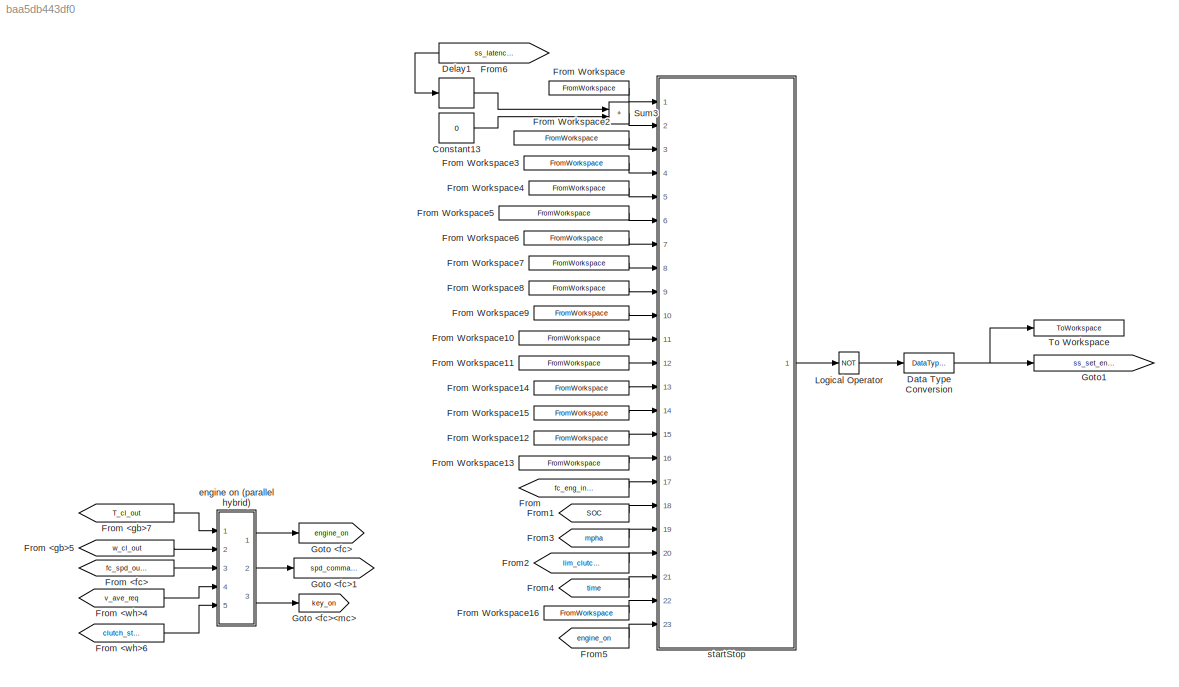
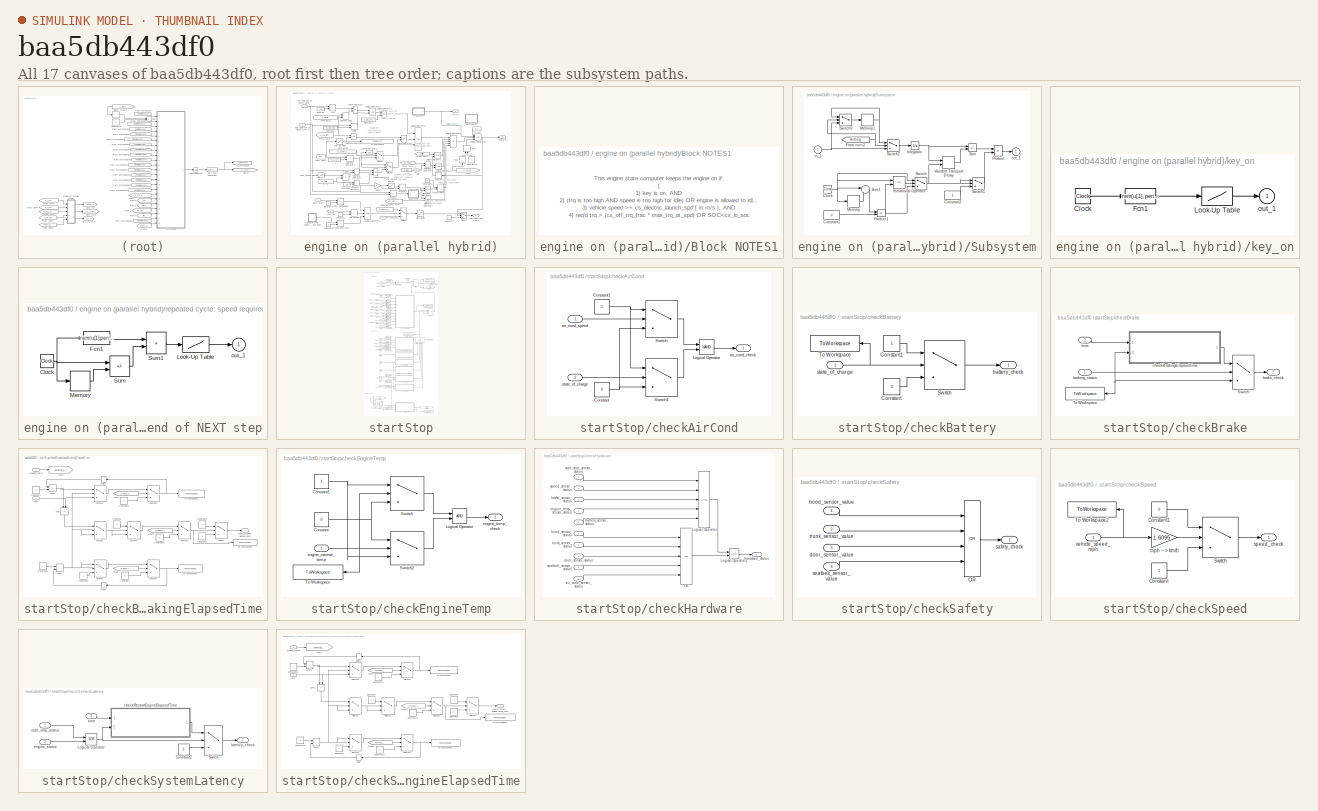
[diagram: thumbnail index - all 17 canvases of the model, root first then tree order]
MODEL slx_baa5db443df0
KIND model
CONFIG AbsTol = auto
CONFIG EnableMultiTasking = off
CONFIG FixedStep = auto
CONFIG MaxStep = auto
CONFIG MinStep = auto
CONFIG RelTol = 1e-3
CONFIG SampleTimeConstraint = Unconstrained
CONFIG SolverName = VariableStepAuto
CONFIG StartTime = 0.0
CONFIG StopTime = 10.0
BLOCK [Constant] Constant13
  OutDataTypeStr = fixdt(0,1,1,0)
  Value = 0
BLOCK [DataTypeConversion] Data Type Conversion
  OutDataTypeStr = double
  RndMeth = Floor
  SaturateOnIntegerOverflow = off
BLOCK [Delay] Delay1
  DelayLength = 1
  InitialCondition = 0
  InputPortMap = u0
  Ports = [1, 1]
BLOCK [From] From
  GotoTag = fc_eng_int_temp
  TagVisibility = global
BLOCK [From] From <fc>
  CloseFcn = tagdialog Close
  GotoTag = fc_spd_out_r
  TagVisibility = global
BLOCK [From] From <gb>5
  CloseFcn = tagdialog Close
  GotoTag = w_cl_out
  NameLocation = top
  TagVisibility = global
BLOCK [From] From <gb>7
  CloseFcn = tagdialog Close
  GotoTag = T_cl_out
  NameLocation = top
  TagVisibility = global
BLOCK [From] From <wh>4
  CloseFcn = tagdialog Close
  GotoTag = v_ave_req
  TagVisibility = global
BLOCK [From] From <wh>6
  CloseFcn = tagdialog Close
  GotoTag = clutch_state
  TagVisibility = global
BLOCK [FromWorkspace] From Workspace
  VariableName = ss_button_pressed
BLOCK [FromWorkspace] From Workspace10
  VariableName = ss_seatbelt_sensor_status
BLOCK [FromWorkspace] From Workspace11
  VariableName = ss_air_cond_sensor_status
BLOCK [FromWorkspace] From Workspace12
  VariableName = ss_door_sensor_value
BLOCK [FromWorkspace] From Workspace13
  VariableName = ss_seatbelt_sensor_value
BLOCK [FromWorkspace] From Workspace14
  VariableName = ss_hood_sensor_value
BLOCK [FromWorkspace] From Workspace15
  VariableName = ss_trunk_sensor_value
BLOCK [FromWorkspace] From Workspace16
  VariableName = ss_air_cond_speed
BLOCK [FromWorkspace] From Workspace2
  VariableName = ss_start_stop_sensor_status
BLOCK [FromWorkspace] From Workspace3
  VariableName = ss_speed_sensor_status
BLOCK [FromWorkspace] From Workspace4
  VariableName = ss_brake_sensor_status
BLOCK [FromWorkspace] From Workspace5
  VariableName = ss_engine_temp_sensor_status
BLOCK [FromWorkspace] From Workspace6
  VariableName = ss_battery_sensor_status
BLOCK [FromWorkspace] From Workspace7
  VariableName = ss_hood_sensor_status
BLOCK [FromWorkspace] From Workspace8
  VariableName = ss_trunk_sensor_status
BLOCK [FromWorkspace] From Workspace9
  VariableName = ss_door_sensor_status
BLOCK [From] From1
  GotoTag = SOC
  TagVisibility = global
BLOCK [From] From2
  GotoTag = lim_clutch_dis
  TagVisibility = global
BLOCK [From] From3
  GotoTag = mpha
  TagVisibility = global
BLOCK [From] From4
  GotoTag = time
  TagVisibility = global
BLOCK [From] From5
  GotoTag = engine_on
  TagVisibility = global
BLOCK [From] From6
  GotoTag = ss_latency_status
  TagVisibility = global
BLOCK [Goto] Goto <fc>
  GotoTag = engine_on
  NameLocation = top
  TagVisibility = global
BLOCK [Goto] Goto <fc>1
  GotoTag = spd_command
  TagVisibility = global
BLOCK [Goto] Goto <fc><mc>
  GotoTag = key_on
  TagVisibility = global
BLOCK [Goto] Goto1
  GotoTag = ss_set_engine_status
  TagVisibility = global
BLOCK [Logic] Logical Operator
  AllPortsSameDT = off
  Operator = NOT
  OutDataTypeStr = fixdt(0,1,1,0)
  Ports = [1, 1]
BLOCK [Sum] Sum3
  IconShape = rectangular
  OutDataTypeStr = fixdt(0,1,1,0)
  Ports = [2, 1]
BLOCK [ToWorkspace] To Workspace
  MaxDataPoints = inf
  Ports = [1]
  SampleTime = 1
  VariableName = ss_set_engine_status
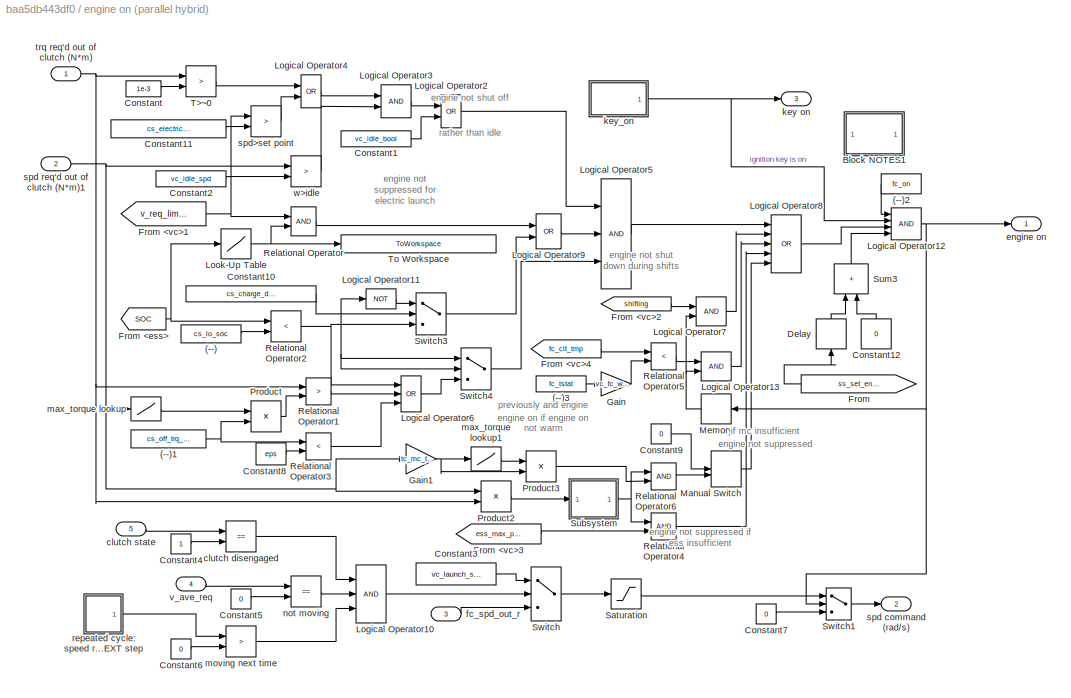
BLOCK [SubSystem] engine on (parallel hybrid)
  Ports = [5, 3]
  RequestExecContextInheritance = off
  ShowPortLabels = none
BLOCK [Constant] engine on (parallel hybrid)/(--)
  Value = cs_lo_soc
BLOCK [Constant] engine on (parallel hybrid)/(--)1
  Value = cs_off_trq_frac
BLOCK [Constant] engine on (parallel hybrid)/(--)2
  Value = fc_on
BLOCK [Constant] engine on (parallel hybrid)/(--)3
  Value = fc_tstat
BLOCK [SubSystem] engine on (parallel hybrid)/Block NOTES1
  Ports = []
  RequestExecContextInheritance = off
BLOCK [Constant] engine on (parallel hybrid)/Constant
  Value = 1e-3
BLOCK [Constant] engine on (parallel hybrid)/Constant1
  Value = vc_idle_bool
BLOCK [Constant] engine on (parallel hybrid)/Constant10
  Value = cs_charge_deplete_bool
BLOCK [Constant] engine on (parallel hybrid)/Constant11
  Value = cs_electric_decel_spd
BLOCK [Constant] engine on (parallel hybrid)/Constant12
  NameLocation = left
  Value = 0
BLOCK [Constant] engine on (parallel hybrid)/Constant2
  Value = vc_idle_spd
BLOCK [Constant] engine on (parallel hybrid)/Constant3
  Value = vc_launch_spd
BLOCK [Constant] engine on (parallel hybrid)/Constant4
BLOCK [Constant] engine on (parallel hybrid)/Constant5
  Value = 0
BLOCK [Constant] engine on (parallel hybrid)/Constant6
  Value = 0
BLOCK [Constant] engine on (parallel hybrid)/Constant7
  Value = 0
BLOCK [Constant] engine on (parallel hybrid)/Constant8
  Value = eps
BLOCK [Constant] engine on (parallel hybrid)/Constant9
  Value = 0
BLOCK [Delay] engine on (parallel hybrid)/Delay
  DelayLength = 1
  InitialCondition = 1
  InputPortMap = u0
  NameLocation = left
  Ports = [1, 1]
BLOCK [From] engine on (parallel hybrid)/From
  GotoTag = ss_set_engine_status
  TagVisibility = global
BLOCK [From] engine on (parallel hybrid)/From <ess>
  CloseFcn = tagdialog Close
  GotoTag = SOC
  NameLocation = top
  TagVisibility = global
BLOCK [From] engine on (parallel hybrid)/From <vc>1
  CloseFcn = tagdialog Close
  GotoTag = v_req_limited
  TagVisibility = global
BLOCK [From] engine on (parallel hybrid)/From <vc>2
  CloseFcn = tagdialog Close
  GotoTag = shifting
  TagVisibility = global
BLOCK [From] engine on (parallel hybrid)/From <vc>3
  CloseFcn = tagdialog Close
  GotoTag = ess_max_pwr
  TagVisibility = global
BLOCK [From] engine on (parallel hybrid)/From <vc>4
  CloseFcn = tagdialog Close
  GotoTag = fc_clt_tmp
  TagVisibility = global
BLOCK [Gain] engine on (parallel hybrid)/Gain
  Gain = vc_fc_warm_tmp_frac
  OutDataTypeStr = Inherit: Same as input
  ParamDataTypeStr = Inherit: Same as input
  SaturateOnIntegerOverflow = on
BLOCK [Gain] engine on (parallel hybrid)/Gain1
  Gain = tc_mc_to_fc_ratio
  OutDataTypeStr = Inherit: Same as input
  ParamDataTypeStr = Inherit: Same as input
  SaturateOnIntegerOverflow = on
BLOCK [Logic] engine on (parallel hybrid)/Logical Operator10
  Inputs = 3
  Ports = [3, 1]
BLOCK [Logic] engine on (parallel hybrid)/Logical Operator11
  Inputs = 1
  Operator = NOT
  Ports = [1, 1]
BLOCK [Logic] engine on (parallel hybrid)/Logical Operator12
  Inputs = 4
  Ports = [4, 1]
BLOCK [Logic] engine on (parallel hybrid)/Logical Operator13
  Ports = [2, 1]
BLOCK [Logic] engine on (parallel hybrid)/Logical Operator2
  Operator = OR
  Ports = [2, 1]
BLOCK [Logic] engine on (parallel hybrid)/Logical Operator3
  Ports = [2, 1]
BLOCK [Logic] engine on (parallel hybrid)/Logical Operator4
  Operator = OR
  Ports = [2, 1]
BLOCK [Logic] engine on (parallel hybrid)/Logical Operator5
  Inputs = 3
  Ports = [3, 1]
BLOCK [Logic] engine on (parallel hybrid)/Logical Operator6
  Inputs = 3
  Operator = OR
  Ports = [3, 1]
BLOCK [Logic] engine on (parallel hybrid)/Logical Operator7
  Ports = [2, 1]
BLOCK [Logic] engine on (parallel hybrid)/Logical Operator8
  Inputs = 5
  Operator = OR
  Ports = [5, 1]
BLOCK [Logic] engine on (parallel hybrid)/Logical Operator9
  Operator = OR
  Ports = [2, 1]
BLOCK [Lookup] engine on (parallel hybrid)/Look-Up Table
  InputValues = [cs_lo_soc cs_hi_soc cs_hi_soc+eps]
  Table = [cs_electric_launch_spd_lo cs_electric_launch_spd_hi cs_electric_launch_spd_hi]
BLOCK [ManualSwitch] engine on (parallel hybrid)/Manual Switch
BLOCK [Memory] engine on (parallel hybrid)/Memory
  InitialCondition = cyc_mph(1,2)>0
BLOCK [Product] engine on (parallel hybrid)/Product
  InputSameDT = on
  OutDataTypeStr = Inherit: Same as first input
  Ports = [2, 1]
  RndMeth = Zero
  SaturateOnIntegerOverflow = on
BLOCK [Product] engine on (parallel hybrid)/Product2
  InputSameDT = on
  OutDataTypeStr = Inherit: Same as first input
  Ports = [2, 1]
  RndMeth = Zero
  SaturateOnIntegerOverflow = on
BLOCK [Product] engine on (parallel hybrid)/Product3
  InputSameDT = on
  OutDataTypeStr = Inherit: Same as first input
  Ports = [2, 1]
  RndMeth = Zero
  SaturateOnIntegerOverflow = on
BLOCK [RelationalOperator] engine on (parallel hybrid)/Relational Operator
  Ports = [2, 1]
BLOCK [RelationalOperator] engine on (parallel hybrid)/Relational Operator1
  Operator = >
  Ports = [2, 1]
BLOCK [RelationalOperator] engine on (parallel hybrid)/Relational Operator2
  Operator = <
  Ports = [2, 1]
BLOCK [RelationalOperator] engine on (parallel hybrid)/Relational Operator3
  Operator = <
  Ports = [2, 1]
BLOCK [RelationalOperator] engine on (parallel hybrid)/Relational Operator4
  Ports = [2, 1]
BLOCK [RelationalOperator] engine on (parallel hybrid)/Relational Operator5
  Operator = <
  Ports = [2, 1]
BLOCK [RelationalOperator] engine on (parallel hybrid)/Relational Operator6
  Ports = [2, 1]
BLOCK [Saturate] engine on (parallel hybrid)/Saturation
  LowerLimit = vc_idle_spd*vc_idle_bool
  UpperLimit = max(fc_map_spd)*fc_spd_scale
BLOCK [SubSystem] engine on (parallel hybrid)/Subsystem
  Ports = [1, 1]
  RequestExecContextInheritance = off
  ShowPortLabels = none
BLOCK [Clock] engine on (parallel hybrid)/Subsystem/Clock
BLOCK [Constant] engine on (parallel hybrid)/Subsystem/Constant1
  Value = n
BLOCK [Constant] engine on (parallel hybrid)/Subsystem/Constant2
BLOCK [From] engine on (parallel hybrid)/Subsystem/From <vc>2
  CloseFcn = tagdialog Close
  GotoTag = shifting
  TagVisibility = global
BLOCK [Integrator] engine on (parallel hybrid)/Subsystem/Integrator
  Ports = [1, 1]
BLOCK [Memory] engine on (parallel hybrid)/Subsystem/Memory
  InitialCondition = -0.1
BLOCK [Memory] engine on (parallel hybrid)/Subsystem/Memory1
BLOCK [Product] engine on (parallel hybrid)/Subsystem/Product
  InputSameDT = on
  Inputs = */
  OutDataTypeStr = Inherit: Same as first input
  Ports = [2, 1]
  RndMeth = Zero
  SaturateOnIntegerOverflow = on
BLOCK [Product] engine on (parallel hybrid)/Subsystem/Product1
  InputSameDT = on
  OutDataTypeStr = Inherit: Same as first input
  Ports = [2, 1]
  RndMeth = Zero
  SaturateOnIntegerOverflow = on
BLOCK [RelationalOperator] engine on (parallel hybrid)/Subsystem/Relational Operator
  Operator = <=
  Ports = [2, 1]
BLOCK [Sum] engine on (parallel hybrid)/Subsystem/Sum
  IconShape = rectangular
  InputSameDT = on
  Inputs = +-
  OutDataTypeStr = Inherit: Same as first input
  Ports = [2, 1]
  SaturateOnIntegerOverflow = on
BLOCK [Sum] engine on (parallel hybrid)/Subsystem/Sum1
  InputSameDT = on
  Inputs = |+-
  OutDataTypeStr = Inherit: Same as first input
  Ports = [2, 1]
  SaturateOnIntegerOverflow = on
BLOCK [Switch] engine on (parallel hybrid)/Subsystem/Switch
  Threshold = eps
BLOCK [Switch] engine on (parallel hybrid)/Subsystem/Switch1
  Threshold = eps
BLOCK [Switch] engine on (parallel hybrid)/Subsystem/Switch2
  Threshold = eps
BLOCK [Switch] engine on (parallel hybrid)/Subsystem/Switch3
  Threshold = eps
BLOCK [VariableTransportDelay] engine on (parallel hybrid)/Subsystem/Variable Transport Delay
  MaximumDelay = n
  Ports = [2, 1]
  ZeroDelay = on
BLOCK [Inport] engine on (parallel hybrid)/Subsystem/in_1
BLOCK [Outport] engine on (parallel hybrid)/Subsystem/out_1
  InitialOutput = 0
BLOCK [Sum] engine on (parallel hybrid)/Sum3
  IconShape = rectangular
  Inputs = +|+
  NameLocation = left
  Ports = [2, 1]
BLOCK [Switch] engine on (parallel hybrid)/Switch
  Threshold = eps
BLOCK [Switch] engine on (parallel hybrid)/Switch1
  Threshold = eps
BLOCK [Switch] engine on (parallel hybrid)/Switch3
  Threshold = eps
BLOCK [Switch] engine on (parallel hybrid)/Switch4
  Threshold = eps
BLOCK [RelationalOperator] engine on (parallel hybrid)/T>~0
  Operator = >
  Ports = [2, 1]
BLOCK [ToWorkspace] engine on (parallel hybrid)/To Workspace
  MaxDataPoints = inf
  Ports = [1]
  SampleTime = -1
  VariableName = cs_electric_launch_spd_probe
BLOCK [RelationalOperator] engine on (parallel hybrid)/clutch disengaged
  Operator = ==
  Ports = [2, 1]
BLOCK [Inport] engine on (parallel hybrid)/clutch state
  Port = 5
BLOCK [Outport] engine on (parallel hybrid)/engine on
BLOCK [Inport] engine on (parallel hybrid)/fc_spd_out_r
  Port = 3
BLOCK [Outport] engine on (parallel hybrid)/key on
  Port = 3
BLOCK [SubSystem] engine on (parallel hybrid)/key_on
  NameLocation = top
  Ports = [0, 1]
  RequestExecContextInheritance = off
  ShowPortLabels = none
BLOCK [Clock] engine on (parallel hybrid)/key_on/Clock
BLOCK [Fcn] engine on (parallel hybrid)/key_on/Fcn1
  Expr = rem(u[1],period)
BLOCK [Lookup] engine on (parallel hybrid)/key_on/Look-Up Table
  InputValues = t
  Table = y
BLOCK [Outport] engine on (parallel hybrid)/key_on/out_1
  InitialOutput = 0
BLOCK [Lookup] engine on (parallel hybrid)/max_torque lookup
  InputValues = fc_map_spd*fc_spd_scale
  NameLocation = top
  Table = fc_max_trq*fc_trq_scale
BLOCK [Lookup] engine on (parallel hybrid)/max_torque lookup1
  InputValues = mc_map_spd*mc_spd_scale
  NameLocation = top
  Table = mc_max_trq*mc_trq_scale*mc_overtrq_factor
BLOCK [RelationalOperator] engine on (parallel hybrid)/moving next time
  Operator = >
  Ports = [2, 1]
BLOCK [RelationalOperator] engine on (parallel hybrid)/not moving
  Operator = ==
  Ports = [2, 1]
BLOCK [SubSystem] engine on (parallel hybrid)/repeated cycle: speed required at end of NEXT step
  Ports = [0, 1]
  RequestExecContextInheritance = off
  ShowPortLabels = none
BLOCK [Clock] engine on (parallel hybrid)/repeated cycle: speed required at end of NEXT step/Clock
BLOCK [Fcn] engine on (parallel hybrid)/repeated cycle: speed required at end of NEXT step/Fcn1
  Expr = rem(u[1],period)
BLOCK [Lookup] engine on (parallel hybrid)/repeated cycle: speed required at end of NEXT step/Look-Up Table
  InputValues = t
  Table = y
BLOCK [Memory] engine on (parallel hybrid)/repeated cycle: speed required at end of NEXT step/Memory
  InitialCondition = -0.1
BLOCK [Sum] engine on (parallel hybrid)/repeated cycle: speed required at end of NEXT step/Sum
  IconShape = rectangular
  InputSameDT = on
  Inputs = +-
  OutDataTypeStr = Inherit: Same as first input
  Ports = [2, 1]
  SaturateOnIntegerOverflow = on
BLOCK [Sum] engine on (parallel hybrid)/repeated cycle: speed required at end of NEXT step/Sum1
  IconShape = rectangular
  InputSameDT = on
  OutDataTypeStr = Inherit: Same as first input
  Ports = [2, 1]
  SaturateOnIntegerOverflow = on
BLOCK [Outport] engine on (parallel hybrid)/repeated cycle: speed required at end of NEXT step/out_1
  InitialOutput = 0
BLOCK [Outport] engine on (parallel hybrid)/spd command (rad//s)
  Port = 2
BLOCK [Inport] engine on (parallel hybrid)/spd req'd out of clutch (N*m)1
  Port = 2
BLOCK [RelationalOperator] engine on (parallel hybrid)/spd>set point
  Operator = >
  Ports = [2, 1]
BLOCK [Inport] engine on (parallel hybrid)/trq req'd out of clutch (N*m)
BLOCK [Inport] engine on (parallel hybrid)/v_ave_req
  Port = 4
BLOCK [RelationalOperator] engine on (parallel hybrid)/w>idle
  Operator = >
  Ports = [2, 1]
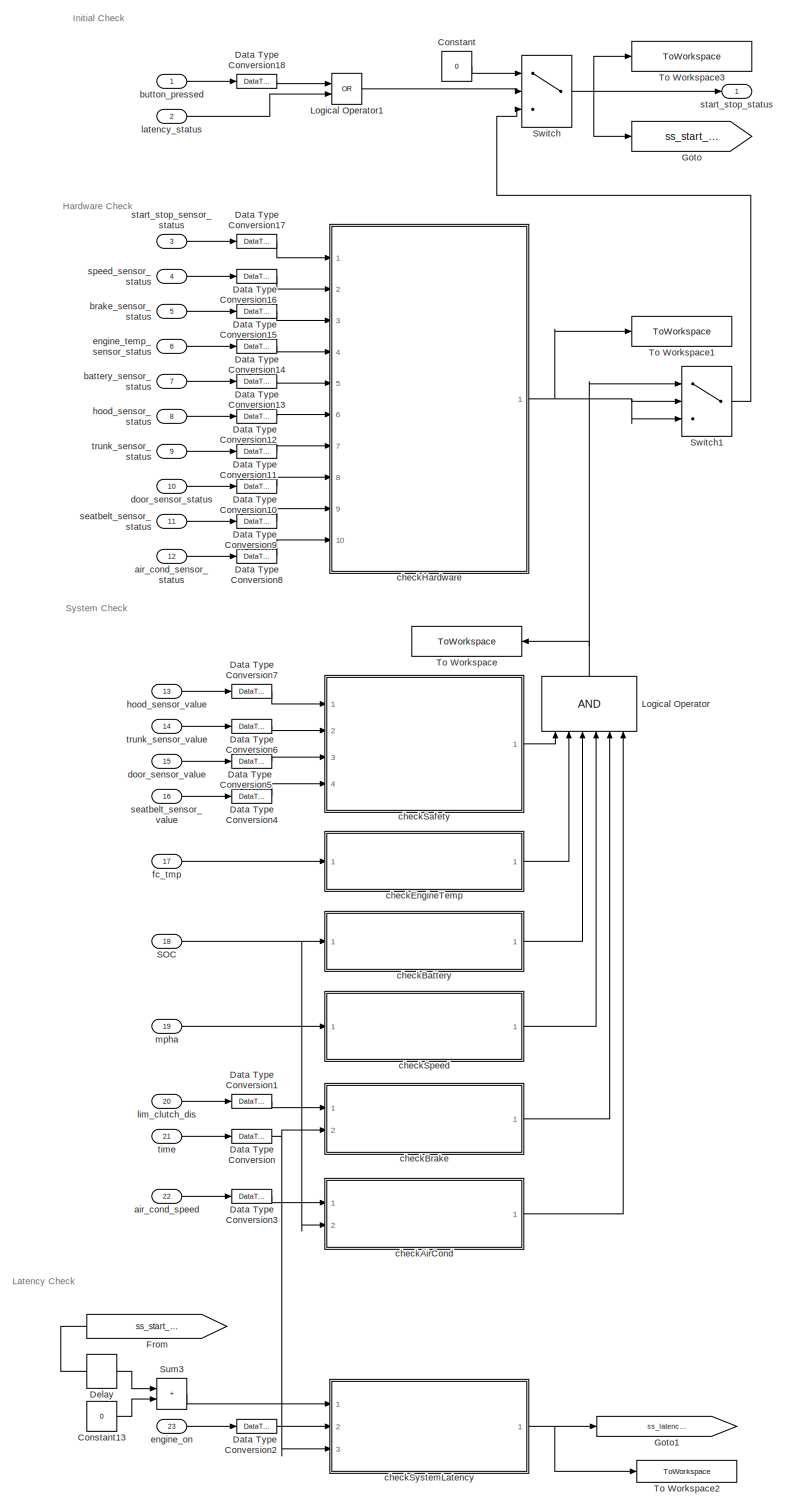
[diagram: startStop - part 1/1, most of the canvas]
BLOCK [SubSystem] startStop
  Ports = [23, 1]
  RequestExecContextInheritance = off
BLOCK [Constant] startStop/Constant
  OutDataTypeStr = fixdt(0,1,1,0)
  Value = 0
BLOCK [Constant] startStop/Constant13
  OutDataTypeStr = fixdt(0,1,1,0)
  Value = 0
BLOCK [DataTypeConversion] startStop/Data Type Conversion
  OutDataTypeStr = fixdt(0,16,1,0)
  RndMeth = Floor
  SaturateOnIntegerOverflow = off
BLOCK [DataTypeConversion] startStop/Data Type Conversion1
  OutDataTypeStr = fixdt(0,1,1,0)
  RndMeth = Floor
  SaturateOnIntegerOverflow = off
BLOCK [DataTypeConversion] startStop/Data Type Conversion10
  OutDataTypeStr = fixdt(0,1,1,0)
  RndMeth = Floor
  SaturateOnIntegerOverflow = off
BLOCK [DataTypeConversion] startStop/Data Type Conversion11
  OutDataTypeStr = fixdt(0,1,1,0)
  RndMeth = Floor
  SaturateOnIntegerOverflow = off
BLOCK [DataTypeConversion] startStop/Data Type Conversion12
  OutDataTypeStr = fixdt(0,1,1,0)
  RndMeth = Floor
  SaturateOnIntegerOverflow = off
BLOCK [DataTypeConversion] startStop/Data Type Conversion13
  OutDataTypeStr = fixdt(0,1,1,0)
  RndMeth = Floor
  SaturateOnIntegerOverflow = off
BLOCK [DataTypeConversion] startStop/Data Type Conversion14
  OutDataTypeStr = fixdt(0,1,1,0)
  RndMeth = Floor
  SaturateOnIntegerOverflow = off
BLOCK [DataTypeConversion] startStop/Data Type Conversion15
  OutDataTypeStr = fixdt(0,1,1,0)
  RndMeth = Floor
  SaturateOnIntegerOverflow = off
BLOCK [DataTypeConversion] startStop/Data Type Conversion16
  OutDataTypeStr = fixdt(0,1,1,0)
  RndMeth = Floor
  SaturateOnIntegerOverflow = off
BLOCK [DataTypeConversion] startStop/Data Type Conversion17
  OutDataTypeStr = fixdt(0,1,1,0)
  RndMeth = Floor
  SaturateOnIntegerOverflow = off
BLOCK [DataTypeConversion] startStop/Data Type Conversion18
  OutDataTypeStr = fixdt(0,1,1,0)
  RndMeth = Floor
  SaturateOnIntegerOverflow = off
BLOCK [DataTypeConversion] startStop/Data Type Conversion2
  OutDataTypeStr = fixdt(0,1,1,0)
  RndMeth = Floor
  SaturateOnIntegerOverflow = off
BLOCK [DataTypeConversion] startStop/Data Type Conversion3
  OutDataTypeStr = fixdt(0,2,1,0)
  RndMeth = Floor
  SaturateOnIntegerOverflow = off
BLOCK [DataTypeConversion] startStop/Data Type Conversion4
  OutDataTypeStr = fixdt(0,1,1,0)
  RndMeth = Floor
  SaturateOnIntegerOverflow = off
BLOCK [DataTypeConversion] startStop/Data Type Conversion5
  OutDataTypeStr = fixdt(0,1,1,0)
  RndMeth = Floor
  SaturateOnIntegerOverflow = off
BLOCK [DataTypeConversion] startStop/Data Type Conversion6
  OutDataTypeStr = fixdt(0,1,1,0)
  RndMeth = Floor
  SaturateOnIntegerOverflow = off
BLOCK [DataTypeConversion] startStop/Data Type Conversion7
  OutDataTypeStr = fixdt(0,1,1,0)
  RndMeth = Floor
  SaturateOnIntegerOverflow = off
BLOCK [DataTypeConversion] startStop/Data Type Conversion8
  OutDataTypeStr = fixdt(0,1,1,0)
  RndMeth = Floor
  SaturateOnIntegerOverflow = off
BLOCK [DataTypeConversion] startStop/Data Type Conversion9
  OutDataTypeStr = fixdt(0,1,1,0)
  RndMeth = Floor
  SaturateOnIntegerOverflow = off
BLOCK [Delay] startStop/Delay
  DelayLength = 1
  InitialCondition = 0
  InputPortMap = u0
  Ports = [1, 1]
BLOCK [From] startStop/From
  GotoTag = ss_start_stop_status
BLOCK [Goto] startStop/Goto
  GotoTag = ss_start_stop_status
BLOCK [Goto] startStop/Goto1
  GotoTag = ss_latency_status
  TagVisibility = global
BLOCK [Logic] startStop/Logical Operator
  AllPortsSameDT = off
  Inputs = 6
  NameLocation = right
  OutDataTypeStr = fixdt(0,1,1,0)
  Ports = [6, 1]
BLOCK [Logic] startStop/Logical Operator1
  AllPortsSameDT = off
  Operator = OR
  OutDataTypeStr = fixdt(0,1,1,0)
  Ports = [2, 1]
BLOCK [Inport] startStop/SOC
  Port = 18
BLOCK [Sum] startStop/Sum3
  IconShape = rectangular
  OutDataTypeStr = fixdt(0,1,1,0)
  Ports = [2, 1]
BLOCK [Switch] startStop/Switch
  InputSameDT = off
  OutDataTypeStr = fixdt(0,1,1,0)
  SaturateOnIntegerOverflow = off
  Threshold = 1
BLOCK [Switch] startStop/Switch1
  InputSameDT = off
  OutDataTypeStr = fixdt(0,1,1,0)
  SaturateOnIntegerOverflow = off
  Threshold = 1
BLOCK [ToWorkspace] startStop/To Workspace
  MaxDataPoints = inf
  Ports = [1]
  SampleTime = -1
  VariableName = ss_system_status
BLOCK [ToWorkspace] startStop/To Workspace1
  MaxDataPoints = inf
  Ports = [1]
  SampleTime = -1
  VariableName = ss_hardware_status
BLOCK [ToWorkspace] startStop/To Workspace2
  MaxDataPoints = inf
  Ports = [1]
  SampleTime = -1
  VariableName = ss_latency_status
BLOCK [ToWorkspace] startStop/To Workspace3
  MaxDataPoints = inf
  Ports = [1]
  SampleTime = -1
  VariableName = ss_start_stop_status
BLOCK [Inport] startStop/air_cond_sensor_status
  Port = 12
BLOCK [Inport] startStop/air_cond_speed
  Port = 22
BLOCK [Inport] startStop/battery_sensor_status
  Port = 7
BLOCK [Inport] startStop/brake_sensor_status
  Port = 5
BLOCK [Inport] startStop/button_pressed
BLOCK [SubSystem] startStop/checkAirCond
  Ports = [2, 1]
  RequestExecContextInheritance = off
BLOCK [Constant] startStop/checkAirCond/Constant
  OutDataTypeStr = fixdt(0,1,1,0)
  Value = 0
BLOCK [Constant] startStop/checkAirCond/Constant1
  OutDataTypeStr = fixdt(0,1,1,0)
BLOCK [Logic] startStop/checkAirCond/Logical Operator
  AllPortsSameDT = off
  Operator = NAND
  OutDataTypeStr = fixdt(0,1,1,0)
  Ports = [2, 1]
BLOCK [Switch] startStop/checkAirCond/Switch
  InputSameDT = off
  OutDataTypeStr = fixdt(0,1,1,0)
  SaturateOnIntegerOverflow = off
  Threshold = 3
BLOCK [Switch] startStop/checkAirCond/Switch1
  InputSameDT = off
  OutDataTypeStr = fixdt(0,1,1,0)
  SaturateOnIntegerOverflow = off
  Threshold = 0.7
BLOCK [Outport] startStop/checkAirCond/air_cond_check
BLOCK [Inport] startStop/checkAirCond/air_cond_speed
  OutDataTypeStr = fixdt(0,2,1,0)
BLOCK [Inport] startStop/checkAirCond/state_of_charge
  Port = 2
BLOCK [SubSystem] startStop/checkBattery
  Ports = [1, 1]
  RequestExecContextInheritance = off
BLOCK [Constant] startStop/checkBattery/Constant
  OutDataTypeStr = fixdt(0,1,1,0)
  Value = 0
BLOCK [Constant] startStop/checkBattery/Constant1
  OutDataTypeStr = fixdt(0,1,1,0)
BLOCK [Switch] startStop/checkBattery/Switch
  Criteria = u2 > Threshold
  InputSameDT = off
  OutDataTypeStr = fixdt(0,1,1,0)
  SaturateOnIntegerOverflow = off
  Threshold = 0.5
BLOCK [ToWorkspace] startStop/checkBattery/To Workspace
  MaxDataPoints = inf
  Ports = [1]
  SampleTime = -1
  VariableName = ss_state_of_charge
BLOCK [Outport] startStop/checkBattery/battery_check
BLOCK [Inport] startStop/checkBattery/state_of_charge
BLOCK [SubSystem] startStop/checkBrake
  Ports = [2, 1]
  RequestExecContextInheritance = off
BLOCK [Switch] startStop/checkBrake/Switch
  InputSameDT = off
  OutDataTypeStr = fixdt(0,1,1,0)
  SaturateOnIntegerOverflow = off
  Threshold = 1
BLOCK [ToWorkspace] startStop/checkBrake/To Workspace
  MaxDataPoints = inf
  Ports = [1]
  SampleTime = -1
  VariableName = ss_braking_status
BLOCK [Outport] startStop/checkBrake/brake_check
BLOCK [Inport] startStop/checkBrake/braking_status
  OutDataTypeStr = fixdt(0,1,1,0)
BLOCK [SubSystem] startStop/checkBrake/checkBrakingElapsedTime
  NameLocation = top
  Ports = [2, 1]
  RequestExecContextInheritance = off
BLOCK [Constant] startStop/checkBrake/checkBrakingElapsedTime/Constant
  OutDataTypeStr = fixdt(0,3,1,0)
  Value = 5
BLOCK [Constant] startStop/checkBrake/checkBrakingElapsedTime/Constant1
  OutDataTypeStr = fixdt(0,1,1,0)
BLOCK [Constant] startStop/checkBrake/checkBrakingElapsedTime/Constant2
  OutDataTypeStr = fixdt(0,1,1,0)
  Value = 0
BLOCK [Constant] startStop/checkBrake/checkBrakingElapsedTime/Constant3
  OutDataTypeStr = fixdt(0,1,1,0)
BLOCK [Constant] startStop/checkBrake/checkBrakingElapsedTime/Constant4
  OutDataTypeStr = fixdt(0,1,1,0)
  Value = 0
BLOCK [Constant] startStop/checkBrake/checkBrakingElapsedTime/Constant5
  OutDataTypeStr = fixdt(0,1,1,0)
  Value = 0
BLOCK [Constant] startStop/checkBrake/checkBrakingElapsedTime/Constant6
  OutDataTypeStr = fixdt(0,1,1,0)
  Value = 0
BLOCK [Constant] startStop/checkBrake/checkBrakingElapsedTime/Constant7
  OutDataTypeStr = fixdt(0,16,1,0)
  Value = 0
BLOCK [Constant] startStop/checkBrake/checkBrakingElapsedTime/Constant8
  OutDataTypeStr = fixdt(0,1,1,0)
  Value = 0
BLOCK [Delay] startStop/checkBrake/checkBrakingElapsedTime/Delay
  DelayLength = 1
  InitialCondition = 0
  InputPortMap = u0
  Ports = [1, 1]
BLOCK [Delay] startStop/checkBrake/checkBrakingElapsedTime/Delay1
  DelayLength = 1
  InitialCondition = 0
  InputPortMap = u0
  Ports = [1, 1]
BLOCK [From] startStop/checkBrake/checkBrakingElapsedTime/From
  GotoTag = braking_status
BLOCK [From] startStop/checkBrake/checkBrakingElapsedTime/From1
  GotoTag = braking_status
BLOCK [From] startStop/checkBrake/checkBrakingElapsedTime/From2
  GotoTag = braking_status
BLOCK [Goto] startStop/checkBrake/checkBrakingElapsedTime/Goto
  GotoTag = braking_status
BLOCK [Sum] startStop/checkBrake/checkBrakingElapsedTime/Sum
  IconShape = rectangular
  Inputs = -|+
  NameLocation = left
  OutDataTypeStr = fixdt(0,16,1,0)
  Ports = [2, 1]
BLOCK [Sum] startStop/checkBrake/checkBrakingElapsedTime/Sum1
  IconShape = rectangular
  OutDataTypeStr = fixdt(0,1,1,0)
  Ports = [2, 1]
BLOCK [Sum] startStop/checkBrake/checkBrakingElapsedTime/Sum2
  IconShape = rectangular
  OutDataTypeStr = fixdt(0,16,1,0)
  Ports = [2, 1]
BLOCK [Switch] startStop/checkBrake/checkBrakingElapsedTime/Switch
  InputSameDT = off
  OutDataTypeStr = fixdt(0,1,1,0)
  SaturateOnIntegerOverflow = off
  Threshold = 5
BLOCK [Switch] startStop/checkBrake/checkBrakingElapsedTime/Switch1
  InputSameDT = off
  OutDataTypeStr = fixdt(0,16,1,0)
  SaturateOnIntegerOverflow = off
  Threshold = 1
BLOCK [Switch] startStop/checkBrake/checkBrakingElapsedTime/Switch2
  InputSameDT = off
  OutDataTypeStr = fixdt(0,16,1,0)
  SaturateOnIntegerOverflow = off
  Threshold = 1
BLOCK [Switch] startStop/checkBrake/checkBrakingElapsedTime/Switch3
  InputSameDT = off
  OutDataTypeStr = fixdt(0,1,1,0)
  SaturateOnIntegerOverflow = off
  Threshold = 1
BLOCK [Switch] startStop/checkBrake/checkBrakingElapsedTime/Switch4
  InputSameDT = off
  SaturateOnIntegerOverflow = off
  Threshold = 5
BLOCK [Switch] startStop/checkBrake/checkBrakingElapsedTime/Switch5
  InputSameDT = off
  OutDataTypeStr = fixdt(0,1,1,0)
  SaturateOnIntegerOverflow = off
  Threshold = 1
BLOCK [Switch] startStop/checkBrake/checkBrakingElapsedTime/Switch7
  InputSameDT = off
  OutDataTypeStr = fixdt(0,16,1,0)
  SaturateOnIntegerOverflow = off
  Threshold = 1
BLOCK [Switch] startStop/checkBrake/checkBrakingElapsedTime/Switch8
  InputSameDT = off
  OutDataTypeStr = fixdt(0,16,1,0)
  SaturateOnIntegerOverflow = off
  Threshold = 1
BLOCK [ToWorkspace] startStop/checkBrake/checkBrakingElapsedTime/To Workspace1
  MaxDataPoints = inf
  Ports = [1]
  SampleTime = -1
  VariableName = ss_braking_start_time
BLOCK [ToWorkspace] startStop/checkBrake/checkBrakingElapsedTime/To Workspace2
  MaxDataPoints = inf
  Ports = [1]
  SampleTime = -1
  VariableName = ss_braking_timer_status
BLOCK [ToWorkspace] startStop/checkBrake/checkBrakingElapsedTime/To Workspace3
  MaxDataPoints = inf
  Ports = [1]
  SampleTime = -1
  VariableName = ss_braking_elapsed_time
BLOCK [Inport] startStop/checkBrake/checkBrakingElapsedTime/braking_status
  OutDataTypeStr = fixdt(0,1,1,0)
  Port = 2
BLOCK [Outport] startStop/checkBrake/checkBrakingElapsedTime/check_braking_elapsed_time
BLOCK [Inport] startStop/checkBrake/checkBrakingElapsedTime/time
  OutDataTypeStr = fixdt(0,16,1,0)
BLOCK [Inport] startStop/checkBrake/time
  OutDataTypeStr = fixdt(0,16,1,0)
  Port = 2
BLOCK [SubSystem] startStop/checkEngineTemp
  Ports = [1, 1]
  RequestExecContextInheritance = off
BLOCK [Constant] startStop/checkEngineTemp/Constant
  OutDataTypeStr = fixdt(0,1,1,0)
  Value = 0
BLOCK [Constant] startStop/checkEngineTemp/Constant1
  OutDataTypeStr = fixdt(0,1,1,0)
BLOCK [Logic] startStop/checkEngineTemp/Logical Operator
  AllPortsSameDT = off
  OutDataTypeStr = fixdt(0,1,1,0)
  Ports = [2, 1]
BLOCK [Switch] startStop/checkEngineTemp/Switch
  Criteria = u2 > Threshold
  InputSameDT = off
  OutDataTypeStr = fixdt(0,1,1,0)
  SaturateOnIntegerOverflow = off
  Threshold = 90
BLOCK [Switch] startStop/checkEngineTemp/Switch2
  InputSameDT = off
  OutDataTypeStr = fixdt(0,1,1,0)
  SaturateOnIntegerOverflow = off
  Threshold = 104
BLOCK [ToWorkspace] startStop/checkEngineTemp/To Workspace
  MaxDataPoints = inf
  Ports = [1]
  SampleTime = -1
  VariableName = ss_engine_internal_temp
BLOCK [Inport] startStop/checkEngineTemp/engine_internal_temp
BLOCK [Outport] startStop/checkEngineTemp/engine_temp_check
BLOCK [SubSystem] startStop/checkHardware
  Ports = [10, 1]
  RequestExecContextInheritance = off
BLOCK [Logic] startStop/checkHardware/Logical Operator
  AllPortsSameDT = off
  Inputs = 5
  OutDataTypeStr = fixdt(0,1,1,0)
  Ports = [5, 1]
BLOCK [Logic] startStop/checkHardware/Logical Operator1
  AllPortsSameDT = off
  OutDataTypeStr = fixdt(0,1,1,0)
  Ports = [2, 1]
BLOCK [Logic] startStop/checkHardware/OR
  AllPortsSameDT = off
  Inputs = 5
  Operator = OR
  OutDataTypeStr = fixdt(0,1,1,0)
  Ports = [5, 1]
BLOCK [Inport] startStop/checkHardware/air_cond_sensor_status
  OutDataTypeStr = fixdt(0,1,1,0)
  Port = 10
BLOCK [Inport] startStop/checkHardware/battery_sensor_status
  OutDataTypeStr = fixdt(0,1,1,0)
  Port = 5
BLOCK [Inport] startStop/checkHardware/brake_sensor_status
  OutDataTypeStr = fixdt(0,1,1,0)
  Port = 3
BLOCK [Inport] startStop/checkHardware/door_sensor_status
  OutDataTypeStr = fixdt(0,1,1,0)
  Port = 8
BLOCK [Inport] startStop/checkHardware/engine_temp_sensor_status
  OutDataTypeStr = fixdt(0,1,1,0)
  Port = 4
BLOCK [Outport] startStop/checkHardware/hardware_status
BLOCK [Inport] startStop/checkHardware/hood_sensor_status
  OutDataTypeStr = fixdt(0,1,1,0)
  Port = 6
BLOCK [Inport] startStop/checkHardware/seatbelt_sensor_status
  OutDataTypeStr = fixdt(0,1,1,0)
  Port = 9
BLOCK [Inport] startStop/checkHardware/speed_sensor_status
  OutDataTypeStr = fixdt(0,1,1,0)
  Port = 2
BLOCK [Inport] startStop/checkHardware/start_stop_sensor_status
  OutDataTypeStr = fixdt(0,1,1,0)
BLOCK [Inport] startStop/checkHardware/trunk_sensor_status
  OutDataTypeStr = fixdt(0,1,1,0)
  Port = 7
BLOCK [SubSystem] startStop/checkSafety
  Ports = [4, 1]
  RequestExecContextInheritance = off
BLOCK [Logic] startStop/checkSafety/OR
  AllPortsSameDT = off
  Inputs = 4
  Operator = OR
  OutDataTypeStr = fixdt(0,1,1,0)
  Ports = [4, 1]
BLOCK [Inport] startStop/checkSafety/door_sensor_value
  OutDataTypeStr = fixdt(0,1,1,0)
  Port = 3
BLOCK [Inport] startStop/checkSafety/hood_sensor_value
  OutDataTypeStr = fixdt(0,1,1,0)
BLOCK [Outport] startStop/checkSafety/safety_check
BLOCK [Inport] startStop/checkSafety/seatbelt_sensor_value
  OutDataTypeStr = fixdt(0,1,1,0)
  Port = 4
BLOCK [Inport] startStop/checkSafety/trunk_sensor_value
  OutDataTypeStr = fixdt(0,1,1,0)
  Port = 2
BLOCK [SubSystem] startStop/checkSpeed
  Ports = [1, 1]
  RequestExecContextInheritance = off
BLOCK [Constant] startStop/checkSpeed/Constant
  OutDataTypeStr = fixdt(0,1,1,0)
BLOCK [Constant] startStop/checkSpeed/Constant1
  OutDataTypeStr = fixdt(0,1,1,0)
  Value = 0
BLOCK [Switch] startStop/checkSpeed/Switch
  InputSameDT = off
  OutDataTypeStr = fixdt(0,1,1,0)
  SaturateOnIntegerOverflow = off
  Threshold = 5
BLOCK [ToWorkspace] startStop/checkSpeed/To Workspace2
  MaxDataPoints = inf
  Ports = [1]
  SampleTime = -1
  VariableName = ss_vehicle_speed_mph
BLOCK [Gain] startStop/checkSpeed/mph --> km//h
  Gain = 1.6095
BLOCK [Outport] startStop/checkSpeed/speed_check
BLOCK [Inport] startStop/checkSpeed/vehicle_speed_mph
BLOCK [SubSystem] startStop/checkSystemLatency
  Ports = [3, 1]
  RequestExecContextInheritance = off
BLOCK [Constant] startStop/checkSystemLatency/Constant2
  OutDataTypeStr = fixdt(0,1,1,0)
  Value = 0
BLOCK [Logic] startStop/checkSystemLatency/Logical Operator
  AllPortsSameDT = off
  Operator = NOR
  OutDataTypeStr = fixdt(0,1,1,0)
  Ports = [2, 1]
BLOCK [Switch] startStop/checkSystemLatency/Switch
  InputSameDT = off
  OutDataTypeStr = fixdt(0,1,1,0)
  SaturateOnIntegerOverflow = off
  Threshold = 1
BLOCK [SubSystem] startStop/checkSystemLatency/checkRestartEngineElapsedTime
  NameLocation = top
  Ports = [2, 1]
  RequestExecContextInheritance = off
BLOCK [Constant] startStop/checkSystemLatency/checkRestartEngineElapsedTime/Constant10
  OutDataTypeStr = fixdt(0,1,1,0)
  Value = 0
BLOCK [Constant] startStop/checkSystemLatency/checkRestartEngineElapsedTime/Constant11
  OutDataTypeStr = fixdt(0,1,1,0)
  Value = 0
BLOCK [Constant] startStop/checkSystemLatency/checkRestartEngineElapsedTime/Constant12
  OutDataTypeStr = fixdt(0,1,1,0)
  Value = 0
BLOCK [Constant] startStop/checkSystemLatency/checkRestartEngineElapsedTime/Constant13
  OutDataTypeStr = fixdt(0,16,1,0)
  Value = 0
BLOCK [Constant] startStop/checkSystemLatency/checkRestartEngineElapsedTime/Constant14
  OutDataTypeStr = fixdt(0,1,1,0)
  Value = 0
BLOCK [Constant] startStop/checkSystemLatency/checkRestartEngineElapsedTime/Constant6
  OutDataTypeStr = fixdt(0,2,1,0)
  Value = 2
BLOCK [Constant] startStop/checkSystemLatency/checkRestartEngineElapsedTime/Constant7
  OutDataTypeStr = fixdt(0,1,1,0)
BLOCK [Constant] startStop/checkSystemLatency/checkRestartEngineElapsedTime/Constant8
  OutDataTypeStr = fixdt(0,1,1,0)
  Value = 0
BLOCK [Constant] startStop/checkSystemLatency/checkRestartEngineElapsedTime/Constant9
  OutDataTypeStr = fixdt(0,1,1,0)
BLOCK [Delay] startStop/checkSystemLatency/checkRestartEngineElapsedTime/Delay
  DelayLength = 1
  InitialCondition = 0
  InputPortMap = u0
  Ports = [1, 1]
BLOCK [Delay] startStop/checkSystemLatency/checkRestartEngineElapsedTime/Delay1
  DelayLength = 1
  InitialCondition = 0
  InputPortMap = u0
  Ports = [1, 1]
BLOCK [From] startStop/checkSystemLatency/checkRestartEngineElapsedTime/From3
  GotoTag = checking_status
BLOCK [From] startStop/checkSystemLatency/checkRestartEngineElapsedTime/From4
  GotoTag = checking_status
BLOCK [From] startStop/checkSystemLatency/checkRestartEngineElapsedTime/From5
  GotoTag = checking_status
BLOCK [Goto] startStop/checkSystemLatency/checkRestartEngineElapsedTime/Goto
  GotoTag = checking_status
BLOCK [Sum] startStop/checkSystemLatency/checkRestartEngineElapsedTime/Sum1
  IconShape = rectangular
  Inputs = -|+
  NameLocation = left
  OutDataTypeStr = fixdt(0,16,1,0)
  Ports = [2, 1]
BLOCK [Sum] startStop/checkSystemLatency/checkRestartEngineElapsedTime/Sum2
  IconShape = rectangular
  OutDataTypeStr = fixdt(0,1,1,0)
  Ports = [2, 1]
BLOCK [Sum] startStop/checkSystemLatency/checkRestartEngineElapsedTime/Sum3
  IconShape = rectangular
  OutDataTypeStr = fixdt(0,16,1,0)
  Ports = [2, 1]
BLOCK [Switch] startStop/checkSystemLatency/checkRestartEngineElapsedTime/Switch10
  InputSameDT = off
  OutDataTypeStr = fixdt(0,16,1,0)
  SaturateOnIntegerOverflow = off
  Threshold = 1
BLOCK [Switch] startStop/checkSystemLatency/checkRestartEngineElapsedTime/Switch11
  InputSameDT = off
  OutDataTypeStr = fixdt(0,1,1,0)
  SaturateOnIntegerOverflow = off
  Threshold = 1
BLOCK [Switch] startStop/checkSystemLatency/checkRestartEngineElapsedTime/Switch12
  InputSameDT = off
  SaturateOnIntegerOverflow = off
  Threshold = 2
BLOCK [Switch] startStop/checkSystemLatency/checkRestartEngineElapsedTime/Switch13
  InputSameDT = off
  OutDataTypeStr = fixdt(0,1,1,0)
  SaturateOnIntegerOverflow = off
  Threshold = 1
BLOCK [Switch] startStop/checkSystemLatency/checkRestartEngineElapsedTime/Switch14
  InputSameDT = off
  SaturateOnIntegerOverflow = off
  Threshold = 1
BLOCK [Switch] startStop/checkSystemLatency/checkRestartEngineElapsedTime/Switch15
  InputSameDT = off
  OutDataTypeStr = fixdt(0,16,1,0)
  SaturateOnIntegerOverflow = off
  Threshold = 1
BLOCK [Switch] startStop/checkSystemLatency/checkRestartEngineElapsedTime/Switch8
  InputSameDT = off
  OutDataTypeStr = fixdt(0,1,1,0)
  SaturateOnIntegerOverflow = off
  Threshold = 2
BLOCK [Switch] startStop/checkSystemLatency/checkRestartEngineElapsedTime/Switch9
  InputSameDT = off
  SaturateOnIntegerOverflow = off
  Threshold = 1
BLOCK [ToWorkspace] startStop/checkSystemLatency/checkRestartEngineElapsedTime/To Workspace1
  MaxDataPoints = inf
  Ports = [1]
  SampleTime = -1
  VariableName = ss_restart_engine_start_time
BLOCK [ToWorkspace] startStop/checkSystemLatency/checkRestartEngineElapsedTime/To Workspace2
  MaxDataPoints = inf
  Ports = [1]
  SampleTime = -1
  VariableName = ss_restart_engine_timer_status
BLOCK [ToWorkspace] startStop/checkSystemLatency/checkRestartEngineElapsedTime/To Workspace3
  MaxDataPoints = inf
  Ports = [1]
  SampleTime = -1
  VariableName = ss_restart_engine_elapsed_time
BLOCK [Inport] startStop/checkSystemLatency/checkRestartEngineElapsedTime/braking_status
  Port = 2
BLOCK [Outport] startStop/checkSystemLatency/checkRestartEngineElapsedTime/check_restart_engine_elapsed_time
BLOCK [Inport] startStop/checkSystemLatency/checkRestartEngineElapsedTime/time
  OutDataTypeStr = fixdt(0,16,1,0)
BLOCK [Inport] startStop/checkSystemLatency/engine_status
  OutDataTypeStr = fixdt(0,1,1,0)
  Port = 2
BLOCK [Outport] startStop/checkSystemLatency/latency_check
BLOCK [Inport] startStop/checkSystemLatency/start_stop_status
BLOCK [Inport] startStop/checkSystemLatency/time
  Port = 3
BLOCK [Inport] startStop/door_sensor_status
  Port = 10
BLOCK [Inport] startStop/door_sensor_value
  Port = 15
BLOCK [Inport] startStop/engine_on
  Port = 23
BLOCK [Inport] startStop/engine_temp_sensor_status
  Port = 6
BLOCK [Inport] startStop/fc_tmp
  Port = 17
BLOCK [Inport] startStop/hood_sensor_status
  Port = 8
BLOCK [Inport] startStop/hood_sensor_value
  Port = 13
BLOCK [Inport] startStop/latency_status
  Port = 2
BLOCK [Inport] startStop/lim_clutch_dis
  Port = 20
BLOCK [Inport] startStop/mpha
  Port = 19
BLOCK [Inport] startStop/seatbelt_sensor_status
  Port = 11
BLOCK [Inport] startStop/seatbelt_sensor_value
  Port = 16
BLOCK [Inport] startStop/speed_sensor_status
  Port = 4
BLOCK [Inport] startStop/start_stop_sensor_status
  Port = 3
BLOCK [Outport] startStop/start_stop_status
BLOCK [Inport] startStop/time
  Port = 21
BLOCK [Inport] startStop/trunk_sensor_status
  Port = 9
BLOCK [Inport] startStop/trunk_sensor_value
  Port = 14
ANNOTATION engine on (parallel hybrid): engine not suppressed for electric launch
ANNOTATION engine on (parallel hybrid): engine not shut down during shifts
ANNOTATION engine on (parallel hybrid): engine not shut off rather than idle
ANNOTATION engine on (parallel hybrid): engine not suppressed if mc insufficient
ANNOTATION engine on (parallel hybrid): engine not suppressed if ess insufficient
ANNOTATION engine on (parallel hybrid): engine on if engine on previously and engine not warm
ANNOTATION engine on (parallel hybrid)/Block NOTES1: This engine state computer keeps the engine on if: [ 1) key is on, AND 2) (trq is too high AND speed is too high for idle) OR engine is allowed to idle, AND 3) vehicle speed >= cs_electric_launch_spd [ in m/s ], AND 4) req'd trq > (cs_off_trq_frac * max_trq_at_spd) OR SOC<cs_lo_soc ] OR [ engine was previously on AND the transmission is shifting ] The last condition is added to prevent the engine ...<+70ch>
ANNOTATION startStop: Hardware Check
ANNOTATION startStop: Initial Check
ANNOTATION startStop: Latency Check
ANNOTATION startStop: System Check
LINE Constant13:1 -> Sum3:2
NET Data Type Conversion:1 -> Goto1:1, To Workspace:1
LINE Delay1:1 -> Sum3:1
LINE From <fc>:1 -> engine on (parallel hybrid):3
LINE From <gb>5:1 -> engine on (parallel hybrid):2
LINE From <gb>7:1 -> engine on (parallel hybrid):1
LINE From <wh>4:1 -> engine on (parallel hybrid):4
LINE From <wh>6:1 -> engine on (parallel hybrid):5
LINE From Workspace10:1 -> startStop:11
LINE From Workspace11:1 -> startStop:12
LINE From Workspace12:1 -> startStop:15
LINE From Workspace13:1 -> startStop:16
LINE From Workspace14:1 -> startStop:13
LINE From Workspace15:1 -> startStop:14
LINE From Workspace16:1 -> startStop:22
LINE From Workspace2:1 -> startStop:3
LINE From Workspace3:1 -> startStop:4
LINE From Workspace4:1 -> startStop:5
LINE From Workspace5:1 -> startStop:6
LINE From Workspace6:1 -> startStop:7
LINE From Workspace7:1 -> startStop:8
LINE From Workspace8:1 -> startStop:9
LINE From Workspace9:1 -> startStop:10
LINE From Workspace:1 -> startStop:1
LINE From1:1 -> startStop:18
LINE From2:1 -> startStop:20
LINE From3:1 -> startStop:19
LINE From4:1 -> startStop:21
LINE From5:1 -> startStop:23
LINE From6:1 -> Delay1:1
LINE From:1 -> startStop:17
LINE Logical Operator:1 -> Data Type Conversion:1
LINE Sum3:1 -> startStop:2
NET engine on (parallel hybrid)/(--)1:1 -> engine on (parallel hybrid)/Product:2, engine on (parallel hybrid)/Relational Operator3:1
LINE engine on (parallel hybrid)/(--)2:1 -> engine on (parallel hybrid)/Logical Operator12:1
LINE engine on (parallel hybrid)/(--)3:1 -> engine on (parallel hybrid)/Gain:1
LINE engine on (parallel hybrid)/(--):1 -> engine on (parallel hybrid)/Relational Operator2:2
NET engine on (parallel hybrid)/Constant10:1 -> engine on (parallel hybrid)/Logical Operator11:1, engine on (parallel hybrid)/Switch3:2, engine on (parallel hybrid)/Switch4:1, engine on (parallel hybrid)/Switch4:2
LINE engine on (parallel hybrid)/Constant11:1 -> engine on (parallel hybrid)/spd>set point:2
LINE engine on (parallel hybrid)/Constant12:1 -> engine on (parallel hybrid)/Sum3:2
LINE engine on (parallel hybrid)/Constant1:1 -> engine on (parallel hybrid)/Logical Operator2:2
LINE engine on (parallel hybrid)/Constant2:1 -> engine on (parallel hybrid)/w>idle:2
LINE engine on (parallel hybrid)/Constant3:1 -> engine on (parallel hybrid)/Switch:1
LINE engine on (parallel hybrid)/Constant4:1 -> engine on (parallel hybrid)/clutch disengaged:2
LINE engine on (parallel hybrid)/Constant5:1 -> engine on (parallel hybrid)/not moving:2
LINE engine on (parallel hybrid)/Constant6:1 -> engine on (parallel hybrid)/moving next time:2
LINE engine on (parallel hybrid)/Constant7:1 -> engine on (parallel hybrid)/Switch1:3
LINE engine on (parallel hybrid)/Constant8:1 -> engine on (parallel hybrid)/Relational Operator3:2
LINE engine on (parallel hybrid)/Constant9:1 -> engine on (parallel hybrid)/Manual Switch:1
LINE engine on (parallel hybrid)/Constant:1 -> engine on (parallel hybrid)/T>~0:2
LINE engine on (parallel hybrid)/Delay:1 -> engine on (parallel hybrid)/Sum3:1
NET engine on (parallel hybrid)/From <ess>:1 -> engine on (parallel hybrid)/Look-Up Table:1, engine on (parallel hybrid)/Relational Operator2:1
NET engine on (parallel hybrid)/From <vc>1:1 -> engine on (parallel hybrid)/Relational Operator:1, engine on (parallel hybrid)/spd>set point:1
LINE engine on (parallel hybrid)/From <vc>2:1 -> engine on (parallel hybrid)/Logical Operator7:1
LINE engine on (parallel hybrid)/From <vc>3:1 -> engine on (parallel hybrid)/Relational Operator4:2
LINE engine on (parallel hybrid)/From <vc>4:1 -> engine on (parallel hybrid)/Relational Operator5:1
LINE engine on (parallel hybrid)/From:1 -> engine on (parallel hybrid)/Delay:1
NET engine on (parallel hybrid)/Gain1:1 -> engine on (parallel hybrid)/Product3:2, engine on (parallel hybrid)/max_torque lookup1:1
LINE engine on (parallel hybrid)/Gain:1 -> engine on (parallel hybrid)/Relational Operator5:2
LINE engine on (parallel hybrid)/Logical Operator10:1 -> engine on (parallel hybrid)/Switch:2
LINE engine on (parallel hybrid)/Logical Operator11:1 -> engine on (parallel hybrid)/Switch3:1
NET engine on (parallel hybrid)/Logical Operator12:1 -> engine on (parallel hybrid)/Memory:1, engine on (parallel hybrid)/Switch1:2, engine on (parallel hybrid)/engine on:1
LINE engine on (parallel hybrid)/Logical Operator13:1 -> engine on (parallel hybrid)/Logical Operator8:3
LINE engine on (parallel hybrid)/Logical Operator2:1 -> engine on (parallel hybrid)/Logical Operator5:1
LINE engine on (parallel hybrid)/Logical Operator3:1 -> engine on (parallel hybrid)/Logical Operator2:1
LINE engine on (parallel hybrid)/Logical Operator4:1 -> engine on (parallel hybrid)/Logical Operator3:1
LINE engine on (parallel hybrid)/Logical Operator5:1 -> engine on (parallel hybrid)/Logical Operator8:1
LINE engine on (parallel hybrid)/Logical Operator6:1 -> engine on (parallel hybrid)/Switch4:3
LINE engine on (parallel hybrid)/Logical Operator7:1 -> engine on (parallel hybrid)/Logical Operator8:2
LINE engine on (parallel hybrid)/Logical Operator8:1 -> engine on (parallel hybrid)/Logical Operator12:3
LINE engine on (parallel hybrid)/Logical Operator9:1 -> engine on (parallel hybrid)/Logical Operator5:2
NET engine on (parallel hybrid)/Look-Up Table:1 -> engine on (parallel hybrid)/Relational Operator:2, engine on (parallel hybrid)/To Workspace:1
LINE engine on (parallel hybrid)/Manual Switch:1 -> engine on (parallel hybrid)/Logical Operator8:5
NET engine on (parallel hybrid)/Memory:1 -> engine on (parallel hybrid)/Logical Operator13:2, engine on (parallel hybrid)/Logical Operator7:2
LINE engine on (parallel hybrid)/Product2:1 -> engine on (parallel hybrid)/Subsystem:1
LINE engine on (parallel hybrid)/Product3:1 -> engine on (parallel hybrid)/Relational Operator6:2
LINE engine on (parallel hybrid)/Product:1 -> engine on (parallel hybrid)/Relational Operator1:2
LINE engine on (parallel hybrid)/Relational Operator1:1 -> engine on (parallel hybrid)/Logical Operator6:2
NET engine on (parallel hybrid)/Relational Operator2:1 -> engine on (parallel hybrid)/Logical Operator6:1, engine on (parallel hybrid)/Switch3:3
LINE engine on (parallel hybrid)/Relational Operator3:1 -> engine on (parallel hybrid)/Logical Operator6:3
LINE engine on (parallel hybrid)/Relational Operator4:1 -> engine on (parallel hybrid)/Logical Operator8:4
LINE engine on (parallel hybrid)/Relational Operator5:1 -> engine on (parallel hybrid)/Logical Operator13:1
LINE engine on (parallel hybrid)/Relational Operator6:1 -> engine on (parallel hybrid)/Manual Switch:2
LINE engine on (parallel hybrid)/Relational Operator:1 -> engine on (parallel hybrid)/Logical Operator9:1
LINE engine on (parallel hybrid)/Saturation:1 -> engine on (parallel hybrid)/Switch1:1
NET engine on (parallel hybrid)/Subsystem/Clock:1 -> engine on (parallel hybrid)/Subsystem/Memory:1, engine on (parallel hybrid)/Subsystem/Relational Operator:1, engine on (parallel hybrid)/Subsystem/Sum1:1, engine on (parallel hybrid)/Subsystem/Switch:1
LINE engine on (parallel hybrid)/Subsystem/Constant1:1 -> engine on (parallel hybrid)/Subsystem/Product1:2
LINE engine on (parallel hybrid)/Subsystem/Constant2:1 -> engine on (parallel hybrid)/Subsystem/Switch1:3
NET engine on (parallel hybrid)/Subsystem/From <vc>2:1 -> engine on (parallel hybrid)/Subsystem/Switch2:2, engine on (parallel hybrid)/Subsystem/Switch3:2
NET engine on (parallel hybrid)/Subsystem/Integrator:1 -> engine on (parallel hybrid)/Subsystem/Sum:1, engine on (parallel hybrid)/Subsystem/Variable Transport Delay:1
NET engine on (parallel hybrid)/Subsystem/Memory1:1 -> engine on (parallel hybrid)/Subsystem/Switch2:1, engine on (parallel hybrid)/Subsystem/Switch3:1
LINE engine on (parallel hybrid)/Subsystem/Memory:1 -> engine on (parallel hybrid)/Subsystem/Sum1:2
NET engine on (parallel hybrid)/Subsystem/Product1:1 -> engine on (parallel hybrid)/Subsystem/Relational Operator:2, engine on (parallel hybrid)/Subsystem/Switch:3
LINE engine on (parallel hybrid)/Subsystem/Product:1 -> engine on (parallel hybrid)/Subsystem/out_1:1
LINE engine on (parallel hybrid)/Subsystem/Relational Operator:1 -> engine on (parallel hybrid)/Subsystem/Switch:2
LINE engine on (parallel hybrid)/Subsystem/Sum1:1 -> engine on (parallel hybrid)/Subsystem/Product1:1
LINE engine on (parallel hybrid)/Subsystem/Sum:1 -> engine on (parallel hybrid)/Subsystem/Product:1
LINE engine on (parallel hybrid)/Subsystem/Switch1:1 -> engine on (parallel hybrid)/Subsystem/Product:2
LINE engine on (parallel hybrid)/Subsystem/Switch2:1 -> engine on (parallel hybrid)/Subsystem/Integrator:1
LINE engine on (parallel hybrid)/Subsystem/Switch3:1 -> engine on (parallel hybrid)/Subsystem/Memory1:1
NET engine on (parallel hybrid)/Subsystem/Switch:1 -> engine on (parallel hybrid)/Subsystem/Switch1:1, engine on (parallel hybrid)/Subsystem/Switch1:2, engine on (parallel hybrid)/Subsystem/Variable Transport Delay:2
LINE engine on (parallel hybrid)/Subsystem/Variable Transport Delay:1 -> engine on (parallel hybrid)/Subsystem/Sum:2
NET engine on (parallel hybrid)/Subsystem/in_1:1 -> engine on (parallel hybrid)/Subsystem/Switch2:3, engine on (parallel hybrid)/Subsystem/Switch3:3
NET engine on (parallel hybrid)/Subsystem:1 -> engine on (parallel hybrid)/Relational Operator4:1, engine on (parallel hybrid)/Relational Operator6:1
LINE engine on (parallel hybrid)/Sum3:1 -> engine on (parallel hybrid)/Logical Operator12:4
LINE engine on (parallel hybrid)/Switch1:1 -> engine on (parallel hybrid)/spd command (rad//s):1
LINE engine on (parallel hybrid)/Switch3:1 -> engine on (parallel hybrid)/Logical Operator9:2
LINE engine on (parallel hybrid)/Switch4:1 -> engine on (parallel hybrid)/Logical Operator5:3
LINE engine on (parallel hybrid)/Switch:1 -> engine on (parallel hybrid)/Saturation:1
LINE engine on (parallel hybrid)/T>~0:1 -> engine on (parallel hybrid)/Logical Operator4:1
LINE engine on (parallel hybrid)/clutch disengaged:1 -> engine on (parallel hybrid)/Logical Operator10:1
LINE engine on (parallel hybrid)/clutch state:1 -> engine on (parallel hybrid)/clutch disengaged:1
LINE engine on (parallel hybrid)/fc_spd_out_r:1 -> engine on (parallel hybrid)/Switch:3
LINE engine on (parallel hybrid)/key_on/Clock:1 -> engine on (parallel hybrid)/key_on/Fcn1:1
LINE engine on (parallel hybrid)/key_on/Fcn1:1 -> engine on (parallel hybrid)/key_on/Look-Up Table:1
LINE engine on (parallel hybrid)/key_on/Look-Up Table:1 -> engine on (parallel hybrid)/key_on/out_1:1
NET engine on (parallel hybrid)/key_on:1 -> engine on (parallel hybrid)/Logical Operator12:2, engine on (parallel hybrid)/key on:1
LINE engine on (parallel hybrid)/max_torque lookup1:1 -> engine on (parallel hybrid)/Product3:1
LINE engine on (parallel hybrid)/max_torque lookup:1 -> engine on (parallel hybrid)/Product:1
LINE engine on (parallel hybrid)/moving next time:1 -> engine on (parallel hybrid)/Logical Operator10:3
LINE engine on (parallel hybrid)/not moving:1 -> engine on (parallel hybrid)/Logical Operator10:2
NET engine on (parallel hybrid)/repeated cycle: speed required at end of NEXT step/Clock:1 -> engine on (parallel hybrid)/repeated cycle: speed required at end of NEXT step/Fcn1:1, engine on (parallel hybrid)/repeated cycle: speed required at end of NEXT step/Memory:1, engine on (parallel hybrid)/repeated cycle: speed required at end of NEXT step/Sum:1
LINE engine on (parallel hybrid)/repeated cycle: speed required at end of NEXT step/Fcn1:1 -> engine on (parallel hybrid)/repeated cycle: speed required at end of NEXT step/Sum1:1
LINE engine on (parallel hybrid)/repeated cycle: speed required at end of NEXT step/Look-Up Table:1 -> engine on (parallel hybrid)/repeated cycle: speed required at end of NEXT step/out_1:1
LINE engine on (parallel hybrid)/repeated cycle: speed required at end of NEXT step/Memory:1 -> engine on (parallel hybrid)/repeated cycle: speed required at end of NEXT step/Sum:2
LINE engine on (parallel hybrid)/repeated cycle: speed required at end of NEXT step/Sum1:1 -> engine on (parallel hybrid)/repeated cycle: speed required at end of NEXT step/Look-Up Table:1
LINE engine on (parallel hybrid)/repeated cycle: speed required at end of NEXT step/Sum:1 -> engine on (parallel hybrid)/repeated cycle: speed required at end of NEXT step/Sum1:2
LINE engine on (parallel hybrid)/repeated cycle: speed required at end of NEXT step:1 -> engine on (parallel hybrid)/moving next time:1
NET engine on (parallel hybrid)/spd req'd out of clutch (N*m)1:1 -> engine on (parallel hybrid)/Gain1:1, engine on (parallel hybrid)/Product2:1, engine on (parallel hybrid)/max_torque lookup:1, engine on (parallel hybrid)/w>idle:1
LINE engine on (parallel hybrid)/spd>set point:1 -> engine on (parallel hybrid)/Logical Operator4:2
NET engine on (parallel hybrid)/trq req'd out of clutch (N*m):1 -> engine on (parallel hybrid)/Product2:2, engine on (parallel hybrid)/Relational Operator1:1, engine on (parallel hybrid)/T>~0:1
LINE engine on (parallel hybrid)/v_ave_req:1 -> engine on (parallel hybrid)/not moving:1
LINE engine on (parallel hybrid)/w>idle:1 -> engine on (parallel hybrid)/Logical Operator3:2
LINE engine on (parallel hybrid):1 -> Goto <fc>:1
LINE engine on (parallel hybrid):2 -> Goto <fc>1:1
LINE engine on (parallel hybrid):3 -> Goto <fc><mc>:1
LINE startStop/Constant13:1 -> startStop/Sum3:2
LINE startStop/Constant:1 -> startStop/Switch:1
LINE startStop/Data Type Conversion10:1 -> startStop/checkHardware:8
LINE startStop/Data Type Conversion11:1 -> startStop/checkHardware:7
LINE startStop/Data Type Conversion12:1 -> startStop/checkHardware:6
LINE startStop/Data Type Conversion13:1 -> startStop/checkHardware:5
LINE startStop/Data Type Conversion14:1 -> startStop/checkHardware:4
LINE startStop/Data Type Conversion15:1 -> startStop/checkHardware:3
LINE startStop/Data Type Conversion16:1 -> startStop/checkHardware:2
LINE startStop/Data Type Conversion17:1 -> startStop/checkHardware:1
LINE startStop/Data Type Conversion18:1 -> startStop/Logical Operator1:1
LINE startStop/Data Type Conversion1:1 -> startStop/checkBrake:1
LINE startStop/Data Type Conversion2:1 -> startStop/checkSystemLatency:2
LINE startStop/Data Type Conversion3:1 -> startStop/checkAirCond:1
LINE startStop/Data Type Conversion4:1 -> startStop/checkSafety:4
LINE startStop/Data Type Conversion5:1 -> startStop/checkSafety:3
LINE startStop/Data Type Conversion6:1 -> startStop/checkSafety:2
LINE startStop/Data Type Conversion7:1 -> startStop/checkSafety:1
LINE startStop/Data Type Conversion8:1 -> startStop/checkHardware:10
LINE startStop/Data Type Conversion9:1 -> startStop/checkHardware:9
NET startStop/Data Type Conversion:1 -> startStop/checkBrake:2, startStop/checkSystemLatency:3
LINE startStop/Delay:1 -> startStop/Sum3:1
LINE startStop/From:1 -> startStop/Delay:1
LINE startStop/Logical Operator1:1 -> startStop/Switch:2
NET startStop/Logical Operator:1 -> startStop/Switch1:1, startStop/To Workspace:1
NET startStop/SOC:1 -> startStop/checkAirCond:2, startStop/checkBattery:1
LINE startStop/Sum3:1 -> startStop/checkSystemLatency:1
LINE startStop/Switch1:1 -> startStop/Switch:3
NET startStop/Switch:1 -> startStop/Goto:1, startStop/To Workspace3:1, startStop/start_stop_status:1
LINE startStop/air_cond_sensor_status:1 -> startStop/Data Type Conversion8:1
LINE startStop/air_cond_speed:1 -> startStop/Data Type Conversion3:1
LINE startStop/battery_sensor_status:1 -> startStop/Data Type Conversion13:1
LINE startStop/brake_sensor_status:1 -> startStop/Data Type Conversion15:1
LINE startStop/button_pressed:1 -> startStop/Data Type Conversion18:1
NET startStop/checkAirCond/Constant1:1 -> startStop/checkAirCond/Switch1:1, startStop/checkAirCond/Switch:1
NET startStop/checkAirCond/Constant:1 -> startStop/checkAirCond/Switch1:3, startStop/checkAirCond/Switch:3
LINE startStop/checkAirCond/Logical Operator:1 -> startStop/checkAirCond/air_cond_check:1
LINE startStop/checkAirCond/Switch1:1 -> startStop/checkAirCond/Logical Operator:2
LINE startStop/checkAirCond/Switch:1 -> startStop/checkAirCond/Logical Operator:1
LINE startStop/checkAirCond/air_cond_speed:1 -> startStop/checkAirCond/Switch:2
LINE startStop/checkAirCond/state_of_charge:1 -> startStop/checkAirCond/Switch1:2
LINE startStop/checkAirCond:1 -> startStop/Logical Operator:6
LINE startStop/checkBattery/Constant1:1 -> startStop/checkBattery/Switch:1
LINE startStop/checkBattery/Constant:1 -> startStop/checkBattery/Switch:3
LINE startStop/checkBattery/Switch:1 -> startStop/checkBattery/battery_check:1
NET startStop/checkBattery/state_of_charge:1 -> startStop/checkBattery/Switch:2, startStop/checkBattery/To Workspace:1
LINE startStop/checkBattery:1 -> startStop/Logical Operator:3
LINE startStop/checkBrake/Switch:1 -> startStop/checkBrake/brake_check:1
NET startStop/checkBrake/braking_status:1 -> startStop/checkBrake/Switch:2, startStop/checkBrake/Switch:3, startStop/checkBrake/To Workspace:1, startStop/checkBrake/checkBrakingElapsedTime:2
LINE startStop/checkBrake/checkBrakingElapsedTime/Constant1:1 -> startStop/checkBrake/checkBrakingElapsedTime/Switch:1
LINE startStop/checkBrake/checkBrakingElapsedTime/Constant2:1 -> startStop/checkBrake/checkBrakingElapsedTime/Switch:3
LINE startStop/checkBrake/checkBrakingElapsedTime/Constant3:1 -> startStop/checkBrake/checkBrakingElapsedTime/Switch3:3
LINE startStop/checkBrake/checkBrakingElapsedTime/Constant4:1 -> startStop/checkBrake/checkBrakingElapsedTime/Switch5:3
LINE startStop/checkBrake/checkBrakingElapsedTime/Constant5:1 -> startStop/checkBrake/checkBrakingElapsedTime/Switch7:3
LINE startStop/checkBrake/checkBrakingElapsedTime/Constant6:1 -> startStop/checkBrake/checkBrakingElapsedTime/Sum1:1
LINE startStop/checkBrake/checkBrakingElapsedTime/Constant7:1 -> startStop/checkBrake/checkBrakingElapsedTime/Sum2:2
LINE startStop/checkBrake/checkBrakingElapsedTime/Constant8:1 -> startStop/checkBrake/checkBrakingElapsedTime/Switch8:3
LINE startStop/checkBrake/checkBrakingElapsedTime/Constant:1 -> startStop/checkBrake/checkBrakingElapsedTime/Switch4:1
LINE startStop/checkBrake/checkBrakingElapsedTime/Delay1:1 -> startStop/checkBrake/checkBrakingElapsedTime/Sum2:1
LINE startStop/checkBrake/checkBrakingElapsedTime/Delay:1 -> startStop/checkBrake/checkBrakingElapsedTime/Sum1:2
LINE startStop/checkBrake/checkBrakingElapsedTime/From1:1 -> startStop/checkBrake/checkBrakingElapsedTime/Switch8:2
LINE startStop/checkBrake/checkBrakingElapsedTime/From2:1 -> startStop/checkBrake/checkBrakingElapsedTime/Switch7:2
LINE startStop/checkBrake/checkBrakingElapsedTime/From:1 -> startStop/checkBrake/checkBrakingElapsedTime/Switch5:2
NET startStop/checkBrake/checkBrakingElapsedTime/Sum1:1 -> startStop/checkBrake/checkBrakingElapsedTime/Switch1:2, startStop/checkBrake/checkBrakingElapsedTime/Switch1:3, startStop/checkBrake/checkBrakingElapsedTime/Switch2:2, startStop/checkBrake/checkBrakingElapsedTime/Switch3:1, startStop/checkBrake/checkBrakingElapsedTime/Switch3:2
NET startStop/checkBrake/checkBrakingElapsedTime/Sum2:1 -> startStop/checkBrake/checkBrakingElapsedTime/Sum:1, startStop/checkBrake/checkBrakingElapsedTime/Switch2:1
LINE startStop/checkBrake/checkBrakingElapsedTime/Sum:1 -> startStop/checkBrake/checkBrakingElapsedTime/Switch1:1
NET startStop/checkBrake/checkBrakingElapsedTime/Switch1:1 -> startStop/checkBrake/checkBrakingElapsedTime/Switch4:2, startStop/checkBrake/checkBrakingElapsedTime/Switch4:3
LINE startStop/checkBrake/checkBrakingElapsedTime/Switch2:1 -> startStop/checkBrake/checkBrakingElapsedTime/Switch8:1
LINE startStop/checkBrake/checkBrakingElapsedTime/Switch3:1 -> startStop/checkBrake/checkBrakingElapsedTime/Switch5:1
LINE startStop/checkBrake/checkBrakingElapsedTime/Switch4:1 -> startStop/checkBrake/checkBrakingElapsedTime/Switch7:1
NET startStop/checkBrake/checkBrakingElapsedTime/Switch5:1 -> startStop/checkBrake/checkBrakingElapsedTime/Delay:1, startStop/checkBrake/checkBrakingElapsedTime/To Workspace2:1
NET startStop/checkBrake/checkBrakingElapsedTime/Switch7:1 -> startStop/checkBrake/checkBrakingElapsedTime/Switch:2, startStop/checkBrake/checkBrakingElapsedTime/To Workspace3:1
NET startStop/checkBrake/checkBrakingElapsedTime/Switch8:1 -> startStop/checkBrake/checkBrakingElapsedTime/Delay1:1, startStop/checkBrake/checkBrakingElapsedTime/To Workspace1:1
LINE startStop/checkBrake/checkBrakingElapsedTime/Switch:1 -> startStop/checkBrake/checkBrakingElapsedTime/check_braking_elapsed_time:1
LINE startStop/checkBrake/checkBrakingElapsedTime/braking_status:1 -> startStop/checkBrake/checkBrakingElapsedTime/Goto:1
NET startStop/checkBrake/checkBrakingElapsedTime/time:1 -> startStop/checkBrake/checkBrakingElapsedTime/Sum:2, startStop/checkBrake/checkBrakingElapsedTime/Switch2:3
LINE startStop/checkBrake/checkBrakingElapsedTime:1 -> startStop/checkBrake/Switch:1
LINE startStop/checkBrake/time:1 -> startStop/checkBrake/checkBrakingElapsedTime:1
LINE startStop/checkBrake:1 -> startStop/Logical Operator:5
NET startStop/checkEngineTemp/Constant1:1 -> startStop/checkEngineTemp/Switch2:3, startStop/checkEngineTemp/Switch:1
NET startStop/checkEngineTemp/Constant:1 -> startStop/checkEngineTemp/Switch2:1, startStop/checkEngineTemp/Switch:3
LINE startStop/checkEngineTemp/Logical Operator:1 -> startStop/checkEngineTemp/engine_temp_check:1
LINE startStop/checkEngineTemp/Switch2:1 -> startStop/checkEngineTemp/Logical Operator:2
LINE startStop/checkEngineTemp/Switch:1 -> startStop/checkEngineTemp/Logical Operator:1
NET startStop/checkEngineTemp/engine_internal_temp:1 -> startStop/checkEngineTemp/Switch2:2, startStop/checkEngineTemp/Switch:2, startStop/checkEngineTemp/To Workspace:1
LINE startStop/checkEngineTemp:1 -> startStop/Logical Operator:2
LINE startStop/checkHardware/Logical Operator1:1 -> startStop/checkHardware/hardware_status:1
LINE startStop/checkHardware/Logical Operator:1 -> startStop/checkHardware/Logical Operator1:1
LINE startStop/checkHardware/OR:1 -> startStop/checkHardware/Logical Operator1:2
LINE startStop/checkHardware/air_cond_sensor_status:1 -> startStop/checkHardware/OR:5
LINE startStop/checkHardware/battery_sensor_status:1 -> startStop/checkHardware/Logical Operator:5
LINE startStop/checkHardware/brake_sensor_status:1 -> startStop/checkHardware/Logical Operator:3
LINE startStop/checkHardware/door_sensor_status:1 -> startStop/checkHardware/OR:3
LINE startStop/checkHardware/engine_temp_sensor_status:1 -> startStop/checkHardware/Logical Operator:4
LINE startStop/checkHardware/hood_sensor_status:1 -> startStop/checkHardware/OR:1
LINE startStop/checkHardware/seatbelt_sensor_status:1 -> startStop/checkHardware/OR:4
LINE startStop/checkHardware/speed_sensor_status:1 -> startStop/checkHardware/Logical Operator:2
LINE startStop/checkHardware/start_stop_sensor_status:1 -> startStop/checkHardware/Logical Operator:1
LINE startStop/checkHardware/trunk_sensor_status:1 -> startStop/checkHardware/OR:2
NET startStop/checkHardware:1 -> startStop/Switch1:2, startStop/Switch1:3, startStop/To Workspace1:1
LINE startStop/checkSafety/OR:1 -> startStop/checkSafety/safety_check:1
LINE startStop/checkSafety/door_sensor_value:1 -> startStop/checkSafety/OR:3
LINE startStop/checkSafety/hood_sensor_value:1 -> startStop/checkSafety/OR:1
LINE startStop/checkSafety/seatbelt_sensor_value:1 -> startStop/checkSafety/OR:4
LINE startStop/checkSafety/trunk_sensor_value:1 -> startStop/checkSafety/OR:2
LINE startStop/checkSafety:1 -> startStop/Logical Operator:1
LINE startStop/checkSpeed/Constant1:1 -> startStop/checkSpeed/Switch:1
LINE startStop/checkSpeed/Constant:1 -> startStop/checkSpeed/Switch:3
LINE startStop/checkSpeed/Switch:1 -> startStop/checkSpeed/speed_check:1
LINE startStop/checkSpeed/mph --> km//h:1 -> startStop/checkSpeed/Switch:2
NET startStop/checkSpeed/vehicle_speed_mph:1 -> startStop/checkSpeed/To Workspace2:1, startStop/checkSpeed/mph --> km//h:1
LINE startStop/checkSpeed:1 -> startStop/Logical Operator:4
LINE startStop/checkSystemLatency/Constant2:1 -> startStop/checkSystemLatency/Switch:3
NET startStop/checkSystemLatency/Logical Operator:1 -> startStop/checkSystemLatency/Switch:2, startStop/checkSystemLatency/checkRestartEngineElapsedTime:2
LINE startStop/checkSystemLatency/Switch:1 -> startStop/checkSystemLatency/latency_check:1
LINE startStop/checkSystemLatency/checkRestartEngineElapsedTime/Constant10:1 -> startStop/checkSystemLatency/checkRestartEngineElapsedTime/Switch13:3
LINE startStop/checkSystemLatency/checkRestartEngineElapsedTime/Constant11:1 -> startStop/checkSystemLatency/checkRestartEngineElapsedTime/Switch14:3
LINE startStop/checkSystemLatency/checkRestartEngineElapsedTime/Constant12:1 -> startStop/checkSystemLatency/checkRestartEngineElapsedTime/Sum2:1
LINE startStop/checkSystemLatency/checkRestartEngineElapsedTime/Constant13:1 -> startStop/checkSystemLatency/checkRestartEngineElapsedTime/Sum3:2
LINE startStop/checkSystemLatency/checkRestartEngineElapsedTime/Constant14:1 -> startStop/checkSystemLatency/checkRestartEngineElapsedTime/Switch15:3
LINE startStop/checkSystemLatency/checkRestartEngineElapsedTime/Constant6:1 -> startStop/checkSystemLatency/checkRestartEngineElapsedTime/Switch12:1
LINE startStop/checkSystemLatency/checkRestartEngineElapsedTime/Constant7:1 -> startStop/checkSystemLatency/checkRestartEngineElapsedTime/Switch8:1
LINE startStop/checkSystemLatency/checkRestartEngineElapsedTime/Constant8:1 -> startStop/checkSystemLatency/checkRestartEngineElapsedTime/Switch8:3
LINE startStop/checkSystemLatency/checkRestartEngineElapsedTime/Constant9:1 -> startStop/checkSystemLatency/checkRestartEngineElapsedTime/Switch11:3
LINE startStop/checkSystemLatency/checkRestartEngineElapsedTime/Delay1:1 -> startStop/checkSystemLatency/checkRestartEngineElapsedTime/Sum3:1
LINE startStop/checkSystemLatency/checkRestartEngineElapsedTime/Delay:1 -> startStop/checkSystemLatency/checkRestartEngineElapsedTime/Sum2:2
LINE startStop/checkSystemLatency/checkRestartEngineElapsedTime/From3:1 -> startStop/checkSystemLatency/checkRestartEngineElapsedTime/Switch13:2
LINE startStop/checkSystemLatency/checkRestartEngineElapsedTime/From4:1 -> startStop/checkSystemLatency/checkRestartEngineElapsedTime/Switch15:2
LINE startStop/checkSystemLatency/checkRestartEngineElapsedTime/From5:1 -> startStop/checkSystemLatency/checkRestartEngineElapsedTime/Switch14:2
LINE startStop/checkSystemLatency/checkRestartEngineElapsedTime/Sum1:1 -> startStop/checkSystemLatency/checkRestartEngineElapsedTime/Switch9:1
NET startStop/checkSystemLatency/checkRestartEngineElapsedTime/Sum2:1 -> startStop/checkSystemLatency/checkRestartEngineElapsedTime/Switch10:2, startStop/checkSystemLatency/checkRestartEngineElapsedTime/Switch11:1, startStop/checkSystemLatency/checkRestartEngineElapsedTime/Switch11:2, startStop/checkSystemLatency/checkRestartEngineElapsedTime/Switch9:2, startStop/checkSystemLatency/checkRestartEngineElapsedTime/Switch9:3
NET startStop/checkSystemLatency/checkRestartEngineElapsedTime/Sum3:1 -> startStop/checkSystemLatency/checkRestartEngineElapsedTime/Sum1:1, startStop/checkSystemLatency/checkRestartEngineElapsedTime/Switch10:1
LINE startStop/checkSystemLatency/checkRestartEngineElapsedTime/Switch10:1 -> startStop/checkSystemLatency/checkRestartEngineElapsedTime/Switch15:1
LINE startStop/checkSystemLatency/checkRestartEngineElapsedTime/Switch11:1 -> startStop/checkSystemLatency/checkRestartEngineElapsedTime/Switch13:1
LINE startStop/checkSystemLatency/checkRestartEngineElapsedTime/Switch12:1 -> startStop/checkSystemLatency/checkRestartEngineElapsedTime/Switch14:1
NET startStop/checkSystemLatency/checkRestartEngineElapsedTime/Switch13:1 -> startStop/checkSystemLatency/checkRestartEngineElapsedTime/Delay:1, startStop/checkSystemLatency/checkRestartEngineElapsedTime/To Workspace2:1
NET startStop/checkSystemLatency/checkRestartEngineElapsedTime/Switch14:1 -> startStop/checkSystemLatency/checkRestartEngineElapsedTime/Switch8:2, startStop/checkSystemLatency/checkRestartEngineElapsedTime/To Workspace3:1
NET startStop/checkSystemLatency/checkRestartEngineElapsedTime/Switch15:1 -> startStop/checkSystemLatency/checkRestartEngineElapsedTime/Delay1:1, startStop/checkSystemLatency/checkRestartEngineElapsedTime/To Workspace1:1
LINE startStop/checkSystemLatency/checkRestartEngineElapsedTime/Switch8:1 -> startStop/checkSystemLatency/checkRestartEngineElapsedTime/check_restart_engine_elapsed_time:1
NET startStop/checkSystemLatency/checkRestartEngineElapsedTime/Switch9:1 -> startStop/checkSystemLatency/checkRestartEngineElapsedTime/Switch12:2, startStop/checkSystemLatency/checkRestartEngineElapsedTime/Switch12:3
LINE startStop/checkSystemLatency/checkRestartEngineElapsedTime/braking_status:1 -> startStop/checkSystemLatency/checkRestartEngineElapsedTime/Goto:1
NET startStop/checkSystemLatency/checkRestartEngineElapsedTime/time:1 -> startStop/checkSystemLatency/checkRestartEngineElapsedTime/Sum1:2, startStop/checkSystemLatency/checkRestartEngineElapsedTime/Switch10:3
LINE startStop/checkSystemLatency/checkRestartEngineElapsedTime:1 -> startStop/checkSystemLatency/Switch:1
LINE startStop/checkSystemLatency/engine_status:1 -> startStop/checkSystemLatency/Logical Operator:2
LINE startStop/checkSystemLatency/start_stop_status:1 -> startStop/checkSystemLatency/Logical Operator:1
LINE startStop/checkSystemLatency/time:1 -> startStop/checkSystemLatency/checkRestartEngineElapsedTime:1
NET startStop/checkSystemLatency:1 -> startStop/Goto1:1, startStop/To Workspace2:1
LINE startStop/door_sensor_status:1 -> startStop/Data Type Conversion10:1
LINE startStop/door_sensor_value:1 -> startStop/Data Type Conversion5:1
LINE startStop/engine_on:1 -> startStop/Data Type Conversion2:1
LINE startStop/engine_temp_sensor_status:1 -> startStop/Data Type Conversion14:1
LINE startStop/fc_tmp:1 -> startStop/checkEngineTemp:1
LINE startStop/hood_sensor_status:1 -> startStop/Data Type Conversion12:1
LINE startStop/hood_sensor_value:1 -> startStop/Data Type Conversion7:1
LINE startStop/latency_status:1 -> startStop/Logical Operator1:2
LINE startStop/lim_clutch_dis:1 -> startStop/Data Type Conversion1:1
LINE startStop/mpha:1 -> startStop/checkSpeed:1
LINE startStop/seatbelt_sensor_status:1 -> startStop/Data Type Conversion9:1
LINE startStop/seatbelt_sensor_value:1 -> startStop/Data Type Conversion4:1
LINE startStop/speed_sensor_status:1 -> startStop/Data Type Conversion16:1
LINE startStop/start_stop_sensor_status:1 -> startStop/Data Type Conversion17:1
LINE startStop/time:1 -> startStop/Data Type Conversion:1
LINE startStop/trunk_sensor_status:1 -> startStop/Data Type Conversion11:1
LINE startStop/trunk_sensor_value:1 -> startStop/Data Type Conversion6:1
LINE startStop:1 -> Logical Operator:1
note: NET lines group one-source signal fan-out (src -> all destinations, sorted); 1:1 wires keep LINE
